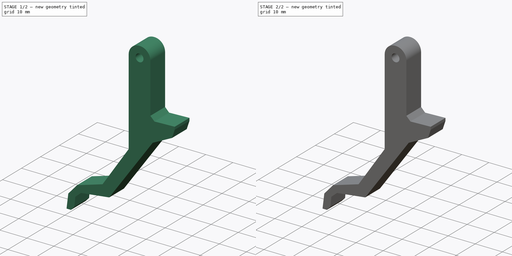
[diagram: build sequence overview — one tinted view per stage of 2, left to right]
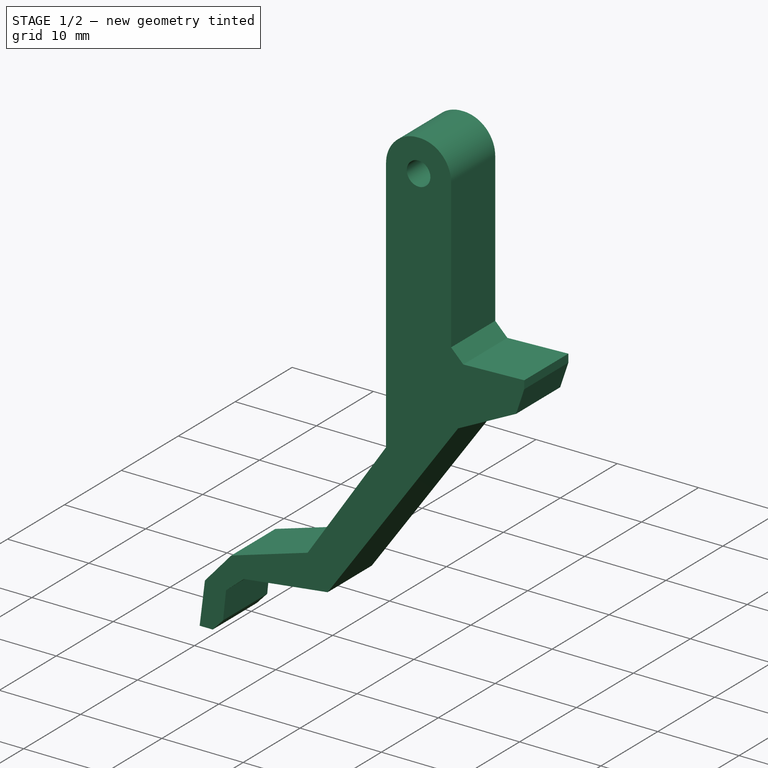
[diagram: stage 1 of 2 — iso view after this stage's code; geometry added in this stage tinted green]
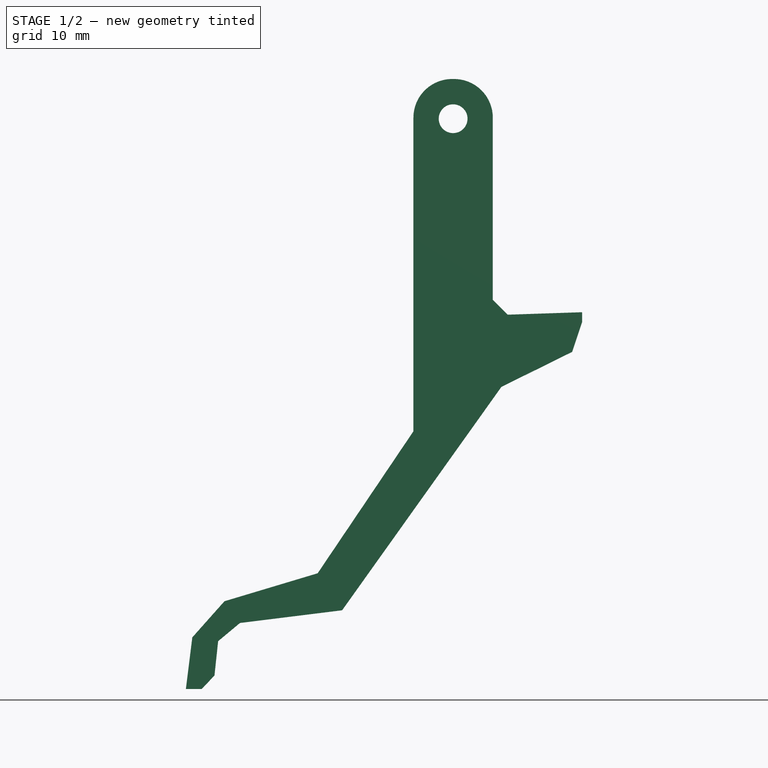
[diagram: stage 1 of 2 — front view after this stage's code; geometry added in this stage tinted green]
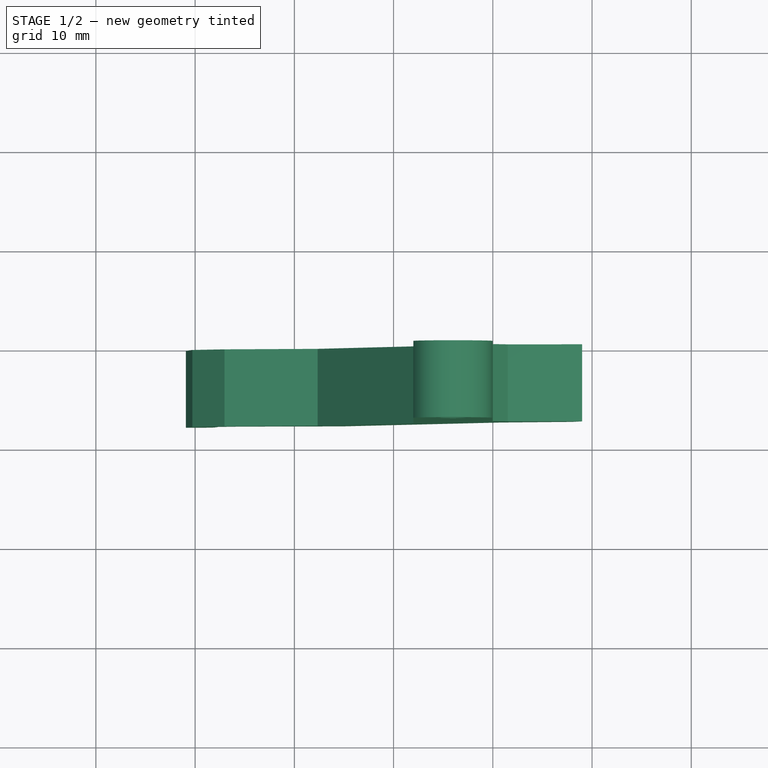
[diagram: stage 1 of 2 — top view after this stage's code; geometry added in this stage tinted green]
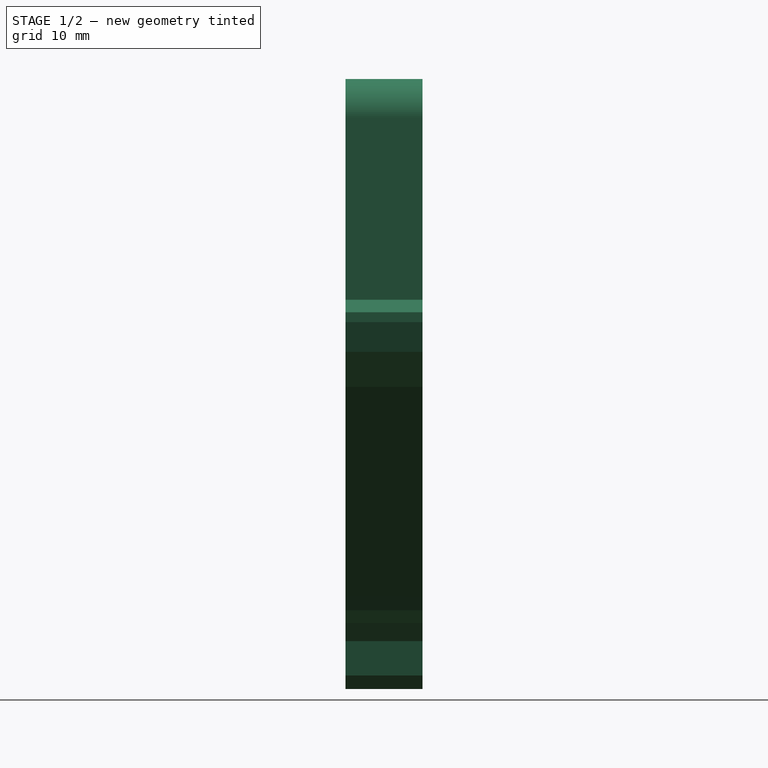
[diagram: stage 1 of 2 — right view after this stage's code; geometry added in this stage tinted green]
FCSTD DOCUMENT  (FreeCAD 0.19R24291 (Git))
Label: railLock
License: All rights reserved
LicenseURL: http://en.wikipedia.org/wiki/All_rights_reserved
objects: Sketcher::SketchObject×2, PartDesign::Pad×1, PartDesign::Fillet×1, PartDesign::Plane×1, PartDesign::Pocket×1, PartDesign::Body×1
note: 10 computed .brp shape members not serialized (recipe doc carries the construction recipe); baked Part::Feature solids carry a one-line shape summary decoded from their .brp

FEATURE [Sketcher::SketchObject] Sketch
  FullyConstrained = false
  MapMode = 5
  Placement = pos=(0,0,0) rot=(1,0,0;1.5708rad)
  Support = -> [XZ_Plane]
  sketch-geometry (19):
    g0: LineSegment StartX=0 StartY=0 StartZ=0 EndX=-8 EndY=0 EndZ=0
    g1: LineSegment StartX=-8 StartY=0 StartZ=0 EndX=-8 EndY=-35.5 EndZ=0
    g2: LineSegment StartX=0 StartY=-22.25 StartZ=0 EndX=0 EndY=0 EndZ=0
    g3: LineSegment StartX=9 StartY=-23.5 StartZ=0 EndX=1.5 EndY=-23.75 EndZ=0
    g4: LineSegment StartX=1.5 StartY=-23.75 StartZ=0 EndX=0 EndY=-22.25 EndZ=0
    g5: Circle CenterX=-4 CenterY=-4 CenterZ=0 NormalX=0 NormalY=0 NormalZ=1 AngleXU=0 Radius=1.45
    g6: LineSegment StartX=9 StartY=-23.5 StartZ=0 EndX=9 EndY=-24.5 EndZ=0
    g7: LineSegment StartX=9 StartY=-24.5 StartZ=0 EndX=8 EndY=-27.5 EndZ=0
    g8: LineSegment StartX=-8 StartY=-35.5 StartZ=0 EndX=-17.651 EndY=-49.8082 EndZ=0
    g9: LineSegment StartX=-17.651 StartY=-49.8082 StartZ=0 EndX=-27.0426 EndY=-52.6256 EndZ=0
    g10: LineSegment StartX=-25.4826 StartY=-54.8198 StartZ=0 EndX=-15.1862 EndY=-53.5391 EndZ=0
    g11: LineSegment StartX=-15.1862 StartY=-53.5391 StartZ=0 EndX=0.866983 EndY=-31.0247 EndZ=0
    g12: LineSegment StartX=0.866983 StartY=-31.0247 StartZ=0 EndX=8 EndY=-27.5 EndZ=0
    g13: LineSegment StartX=-27.0426 StartY=-52.6256 StartZ=0 EndX=-30.2825 EndY=-56.2688 EndZ=0
    g14: LineSegment StartX=-27.681 StartY=-56.6498 StartZ=0 EndX=-25.4826 EndY=-54.8198 EndZ=0
    g15: LineSegment StartX=-27.681 StartY=-56.6498 StartZ=0 EndX=-28.0482 EndY=-60.1085 EndZ=0
    g16: LineSegment StartX=-30.9311 StartY=-61.4698 StartZ=0 EndX=-30.2825 EndY=-56.2688 EndZ=0
    g17: LineSegment StartX=-30.9311 StartY=-61.4698 StartZ=0 EndX=-29.3295 EndY=-61.4698 EndZ=0
    g18: LineSegment StartX=-29.3295 StartY=-61.4698 StartZ=0 EndX=-28.0482 EndY=-60.1085 EndZ=0
  constraints (37):
    c: Coincident(g0,g1)
    c: Coincident(g2,g0)
    c: Horizontal(g0)
    c: Vertical(g1)
    c: Vertical(g2)
    c: Coincident(g0,g-1)
    c: DistanceX(g0,g0) = 8
    c: DistanceY(g2,g2) = 22.25
    c: Coincident(g3,g4)
    c: Coincident(g4,g2)
    c: Diameter(g5) = 2.9
    c: DistanceY(g3,g0) = 23.75
    c: DistanceY(g3,g0) = 23.5
    c: DistanceX(g0,g3) = 9
    c: Angle(g4,g2) = 2.35619
    c: Coincident(g3,g6)
    c: Vertical(g6)
    c: DistanceY(g6,g6) = 1
    c: DistanceX(g5,g0) = 4
    c: DistanceY(g5,g0) = 4
    c: Coincident(g6,g7)
    c: DistanceX(g7,g6) = 1
    c: DistanceY(g7,g6) = 3
    c: DistanceY(g1,g1) = 35.5
    c: Coincident(g1,g8)
    c: Coincident(g8,g9)
    c: Coincident(g10,g11)
    c: Coincident(g12,g7)
    c: Angle(g1,g8) = 2.54818
    c: Coincident(g9,g13)
    c: Coincident(g14,g10)
    c: Coincident(g11,g12)
    c: Coincident(g14,g15)
    c: Coincident(g16,g13)
    c: Coincident(g16,g17)
    c: Coincident(g17,g18)
    c: Coincident(g18,g15)
FEATURE [PartDesign::Pad] Pad
  Direction = (1,1,1)
  Length = 7.75
  Length2 = 100
  Placement = pos=(0,0,0) rot=(1,0,0;1.5708rad)
  Profile = -> Sketch
  Type = 0
FEATURE [PartDesign::Fillet] Fillet
  Base = -> Pad [Edge11,Edge8]
  BaseFeature = -> Pad
  Placement = pos=(0,0,0) rot=(1,0,0;1.5708rad)
  Radius = 3.9
  SupportTransform = false
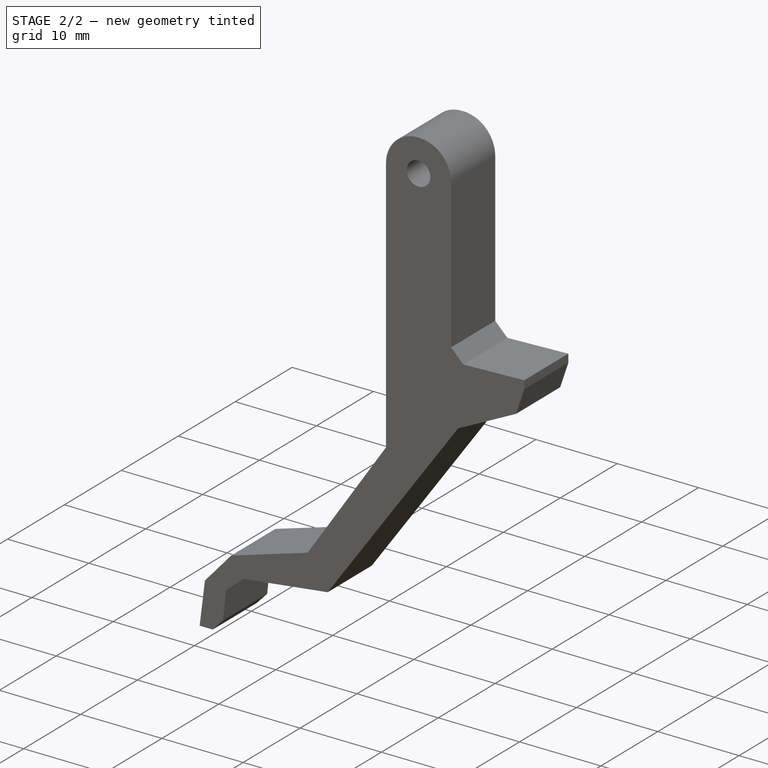
[diagram: stage 2 of 2 — iso view after this stage's code; geometry added in this stage tinted green]
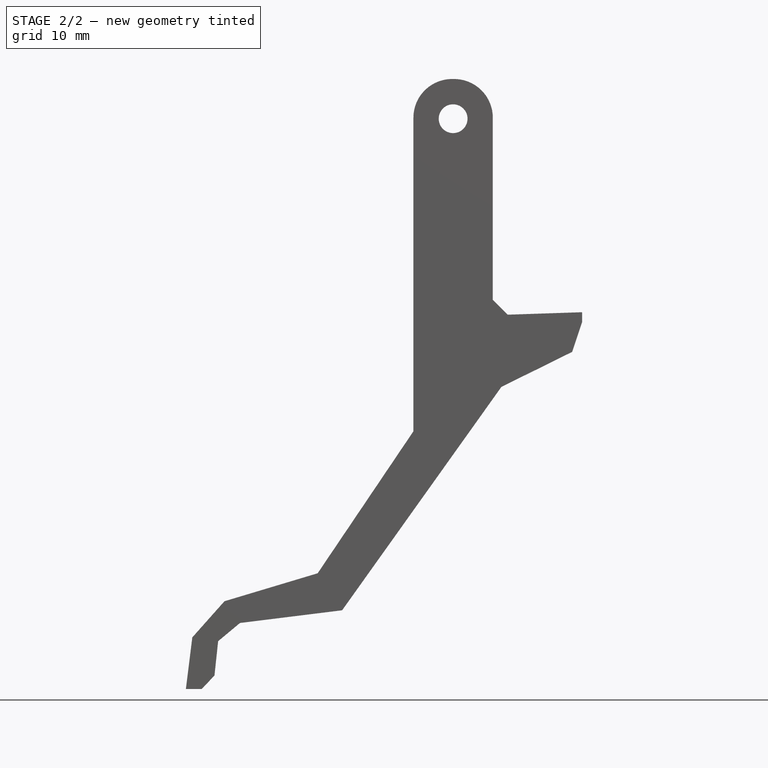
[diagram: stage 2 of 2 — front view after this stage's code; geometry added in this stage tinted green]
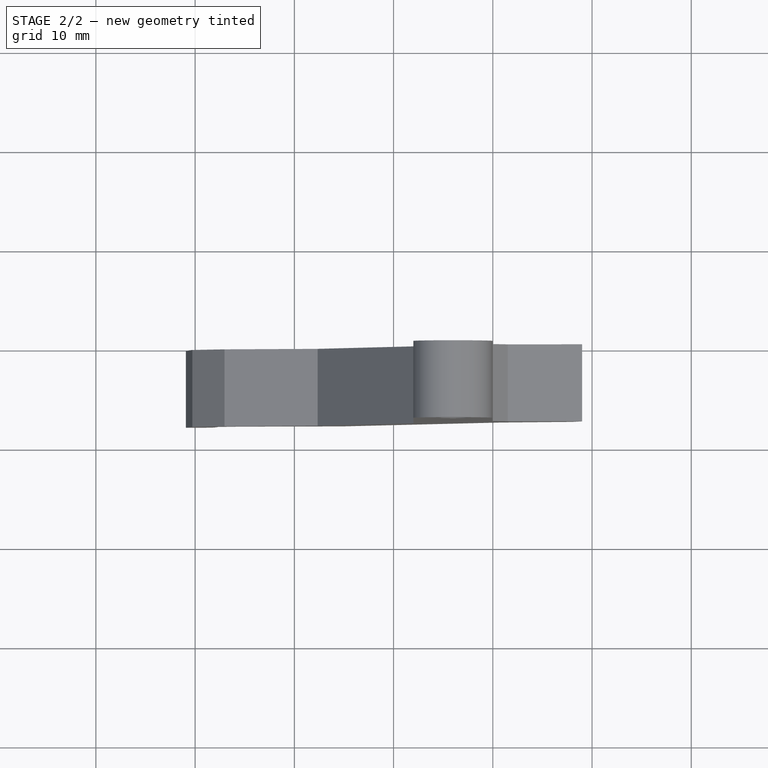
[diagram: stage 2 of 2 — top view after this stage's code; geometry added in this stage tinted green]
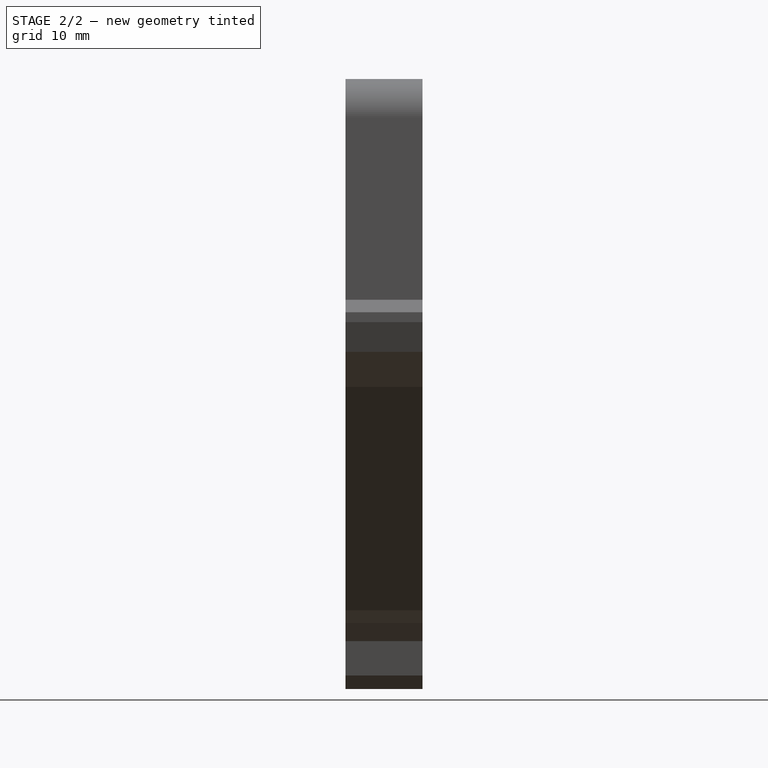
[diagram: stage 2 of 2 — right view after this stage's code; geometry added in this stage tinted green]
FEATURE [PartDesign::Plane] DatumPlane
  Length = 99.6205
  MapMode = 5
  Placement = pos=(-8,0,0) rot=(0.707107,0,-0.707107;3.14159rad)
  ResizeMode = 0
  Support = -> [Fillet]
  Width = 63.1507
FEATURE [Sketcher::SketchObject] Sketch002
  FullyConstrained = true
  MapMode = 5
  Placement = pos=(-8,0,0) rot=(0.707107,0,-0.707107;3.14159rad)
  Support = -> [DatumPlane]
  sketch-geometry (1):
    g0: Circle CenterX=26 CenterY=3.83 CenterZ=0 NormalX=0 NormalY=0 NormalZ=1 AngleXU=0 Radius=3.5
  constraints (3):
    c: Diameter(g0) = 7
    c: DistanceY(g-1,g0) = 3.83
    c: DistanceX(g-1,g0) = 26
FEATURE [PartDesign::Pocket] Pocket001
  BaseFeature = -> Fillet
  Length = 2
  Length2 = 100
  Placement = pos=(0,0,0) rot=(1,0,0;1.5708rad)
  Profile = -> Sketch002
  Type = 0
FEATURE [PartDesign::Body] Body
  Group = -> [Sketch,Pad,Fillet,DatumPlane,Sketch002,Pocket001]
  Origin = -> Origin
  Tip = -> Pocket001
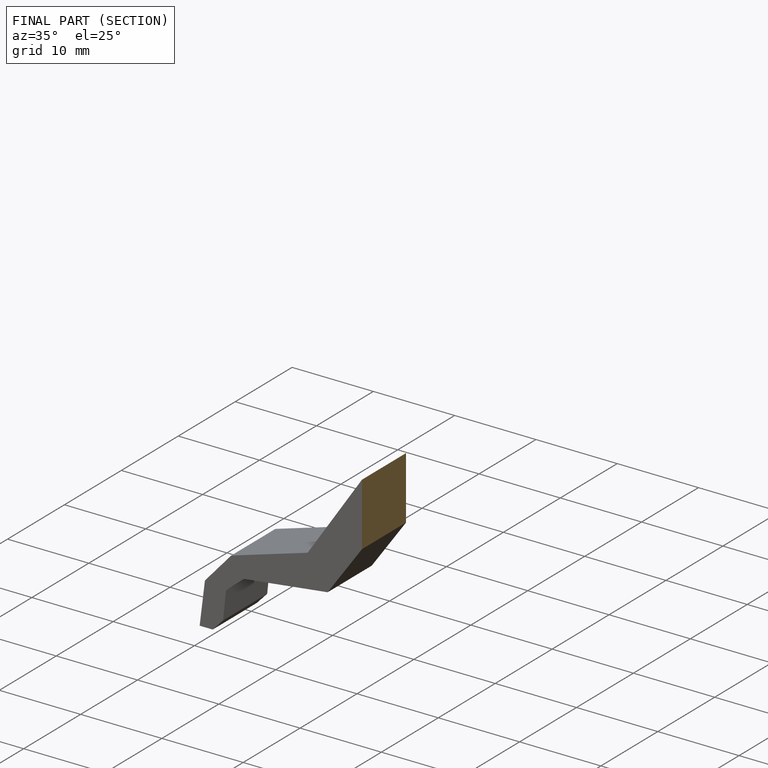
[diagram: finished part — half-section view (interior)]
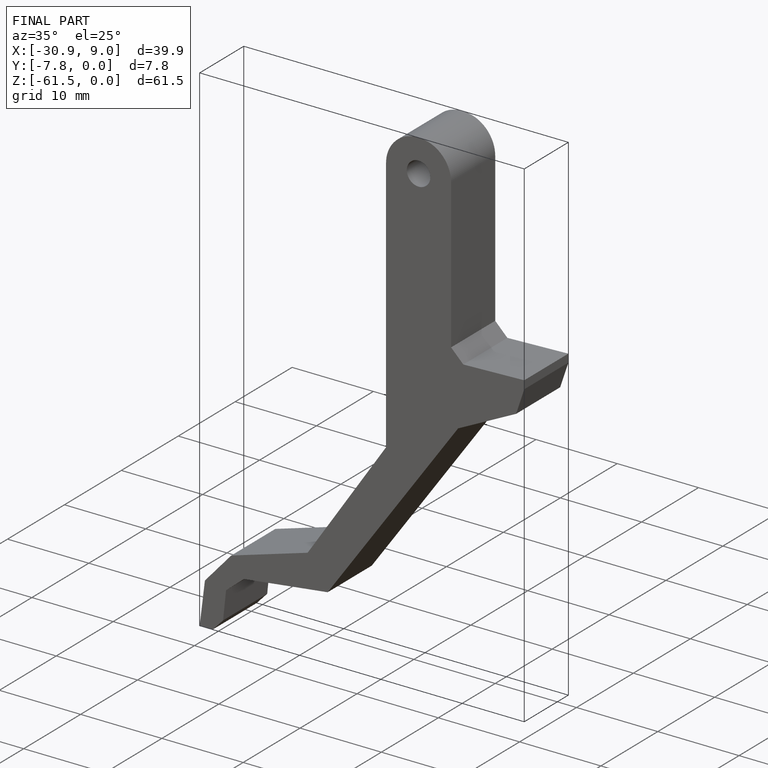
[diagram: finished part — iso view with bounding-box wireframe]
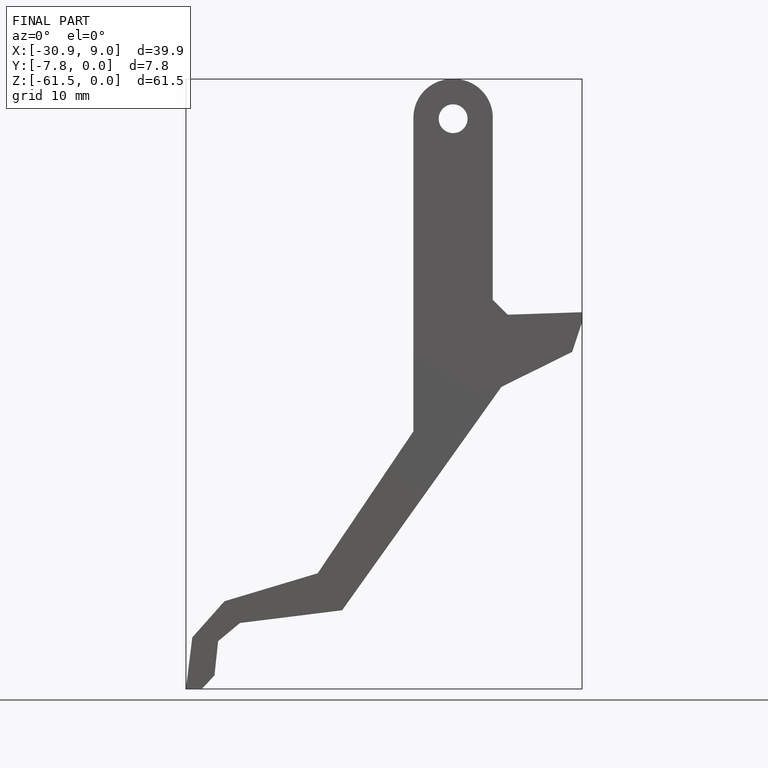
[diagram: finished part — front view with bounding-box wireframe]
